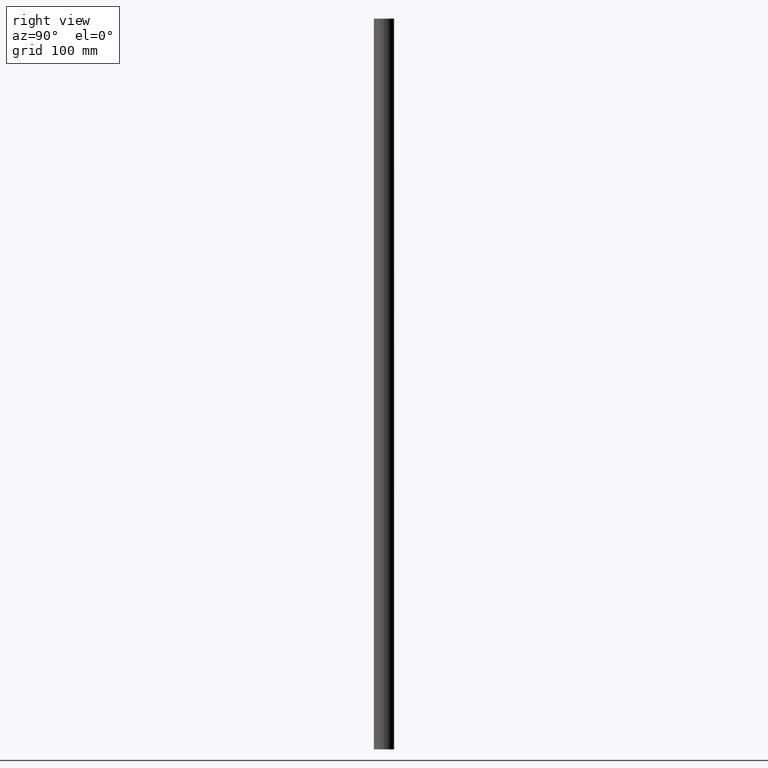
[diagram: clean part render]
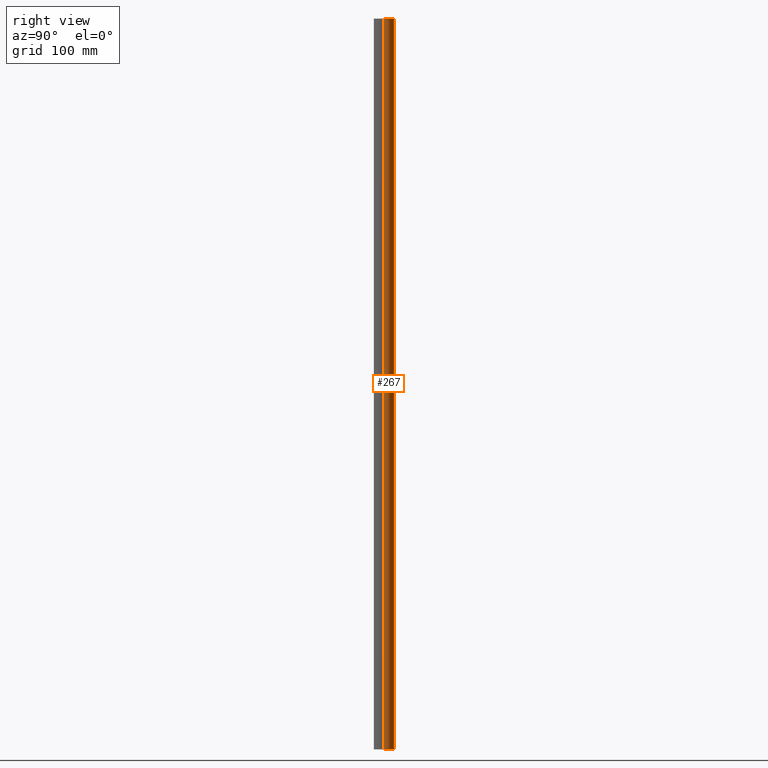
[diagram: same view with one face highlighted and labeled with its STEP entity id]
A machine part, right view. The second image highlights one B-rep face of the part: STEP entity #267.
In plain terms, the highlighted cylindrical surface (edge-blend (fillet) strip) has radius 12.7 mm, axis along (0, 0, 1).
Its self-contained STEP definition (entity closure, byte-faithful):
#2 = VERTEX_POINT ( 'NONE', #209 ) ;
#10 = DIRECTION ( 'NONE',  ( 0.000000000000000000, 0.000000000000000000, 1.000000000000000000 ) ) ;
#15 = CIRCLE ( 'NONE', #72, 0.5000000000000000000 ) ;
#16 = LINE ( 'NONE', #99, #96 ) ;
#18 = LINE ( 'NONE', #182, #85 ) ;
#23 = EDGE_CURVE ( 'NONE', #2, #41, #18, .T. ) ;
#31 = CARTESIAN_POINT ( 'NONE',  ( 0.000000000000000000, 1.750000000000000000, -36.00000000000000000 ) ) ;
#32 = DIRECTION ( 'NONE',  ( 1.000000000000000000, 0.000000000000000000, 0.000000000000000000 ) ) ;
#41 = VERTEX_POINT ( 'NONE', #249 ) ;
#54 = CARTESIAN_POINT ( 'NONE',  ( 0.000000000000000000, 1.750000000000000000, -36.00000000000000000 ) ) ;
#69 = DIRECTION ( 'NONE',  ( 0.000000000000000000, 0.000000000000000000, 1.000000000000000000 ) ) ;
#71 = AXIS2_PLACEMENT_3D ( 'NONE', #54, #10, #128 ) ;
#72 = AXIS2_PLACEMENT_3D ( 'NONE', #131, #69, #151 ) ;
#79 = CIRCLE ( 'NONE', #266, 0.5000000000000000000 ) ;
#82 = ORIENTED_EDGE ( 'NONE', *, *, #118, .T. ) ;
#85 = VECTOR ( 'NONE', #203, 39.37007874015748143 ) ;
#88 = EDGE_CURVE ( 'NONE', #41, #137, #15, .T. ) ;
#96 = VECTOR ( 'NONE', #268, 39.37007874015748143 ) ;
#99 = CARTESIAN_POINT ( 'NONE',  ( -0.5000000000000000000, 1.750000000000000000, -36.00000000000000000 ) ) ;
#105 = EDGE_LOOP ( 'NONE', ( #162, #82, #207, #184 ) ) ;
#118 = EDGE_CURVE ( 'NONE', #123, #137, #16, .T. ) ;
#123 = VERTEX_POINT ( 'NONE', #147 ) ;
#128 = DIRECTION ( 'NONE',  ( 1.000000000000000000, 0.000000000000000000, 0.000000000000000000 ) ) ;
#131 = CARTESIAN_POINT ( 'NONE',  ( 0.000000000000000000, 1.750000000000000000, 0.000000000000000000 ) ) ;
#137 = VERTEX_POINT ( 'NONE', #256 ) ;
#147 = CARTESIAN_POINT ( 'NONE',  ( -0.5000000000000000000, 1.750000000000000000, -36.00000000000000000 ) ) ;
#151 = DIRECTION ( 'NONE',  ( 1.000000000000000000, 0.000000000000000000, 0.000000000000000000 ) ) ;
#162 = ORIENTED_EDGE ( 'NONE', *, *, #205, .T. ) ;
#182 = CARTESIAN_POINT ( 'NONE',  ( 0.5000000000000000000, 1.750000000000000000, -36.00000000000000000 ) ) ;
#184 = ORIENTED_EDGE ( 'NONE', *, *, #23, .F. ) ;
#196 = CYLINDRICAL_SURFACE ( 'NONE', #71, 0.5000000000000000000 ) ;
#203 = DIRECTION ( 'NONE',  ( 0.000000000000000000, 0.000000000000000000, 1.000000000000000000 ) ) ;
#205 = EDGE_CURVE ( 'NONE', #2, #123, #79, .T. ) ;
#207 = ORIENTED_EDGE ( 'NONE', *, *, #88, .F. ) ;
#209 = CARTESIAN_POINT ( 'NONE',  ( 0.5000000000000000000, 1.750000000000000000, -36.00000000000000000 ) ) ;
#223 = DIRECTION ( 'NONE',  ( 0.000000000000000000, 0.000000000000000000, 1.000000000000000000 ) ) ;
#248 = FACE_OUTER_BOUND ( 'NONE', #105, .T. ) ;
#249 = CARTESIAN_POINT ( 'NONE',  ( 0.5000000000000000000, 1.750000000000000000, 0.000000000000000000 ) ) ;
#256 = CARTESIAN_POINT ( 'NONE',  ( -0.5000000000000000000, 1.750000000000000000, 0.000000000000000000 ) ) ;
#266 = AXIS2_PLACEMENT_3D ( 'NONE', #31, #223, #32 ) ;
#267 = ADVANCED_FACE ( 'NONE', ( #248 ), #196, .T. ) ;
#268 = DIRECTION ( 'NONE',  ( 0.000000000000000000, 0.000000000000000000, 1.000000000000000000 ) ) ;